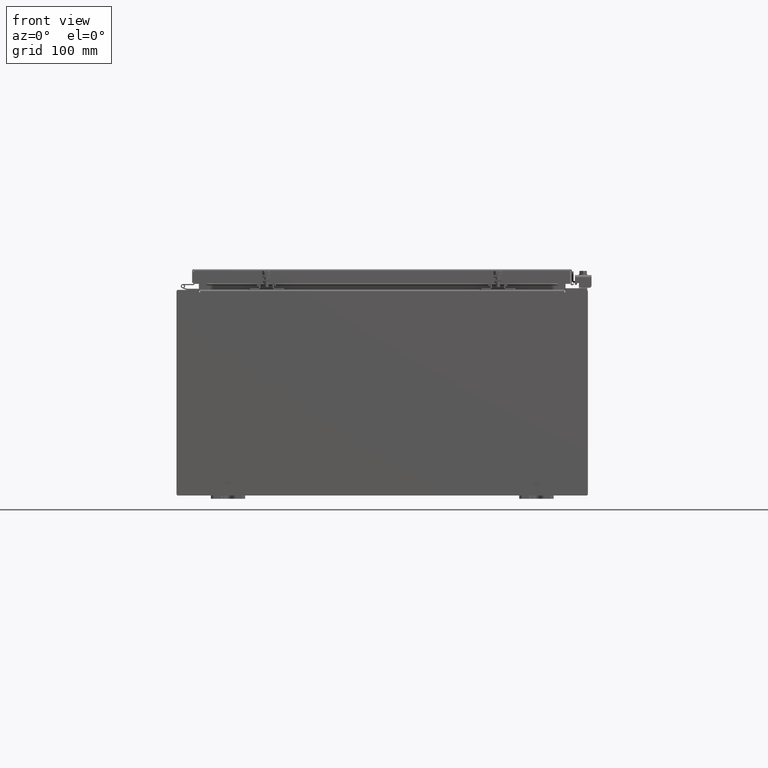
[diagram: clean part render]
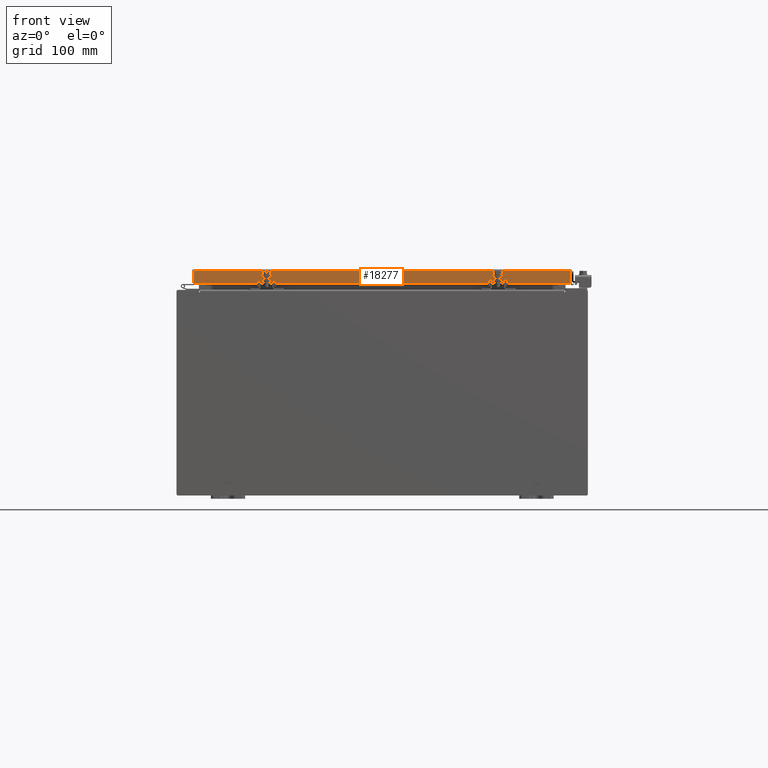
[diagram: same view with one face highlighted and labeled with its STEP entity id]
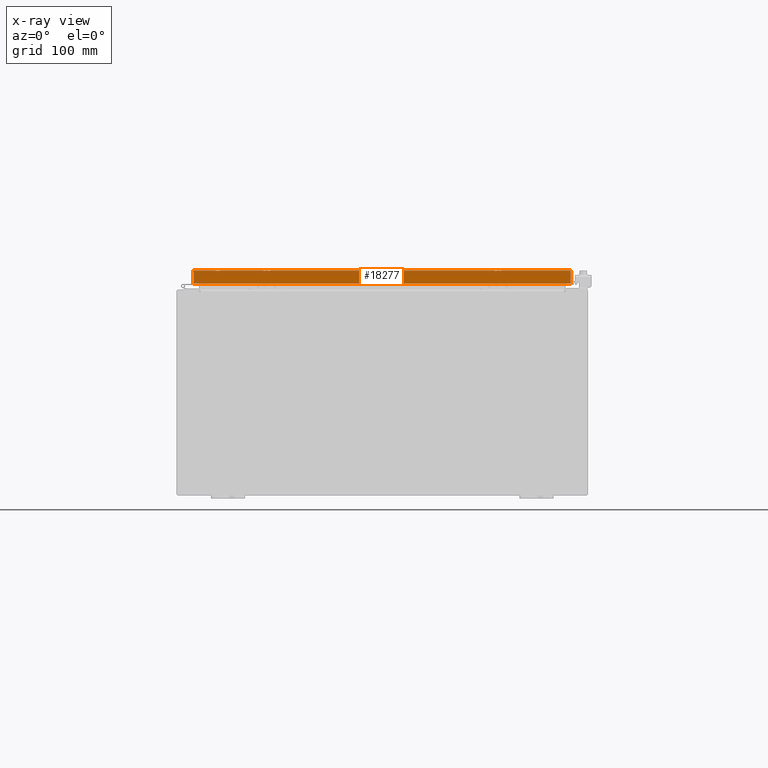
[diagram: x-ray of the same camera — body ghosted, the highlighted face saturated]
A machine part, front view. The second image highlights one B-rep face of the part: STEP entity #18277.
The next image is the same camera in x-ray: the body ghosted, the highlighted face saturated — about 0% of this face is hidden behind the body in this view.
In plain terms, the highlighted planar face has unit normal (0, 1, -0).
Its self-contained STEP definition (entity closure, byte-faithful):
#659 = LINE ( 'NONE', #26872, #32585 ) ;
#745 = VERTEX_POINT ( 'NONE', #12238 ) ;
#974 = VERTEX_POINT ( 'NONE', #33088 ) ;
#3391 = PLANE ( 'NONE',  #11721 ) ;
#4183 = VERTEX_POINT ( 'NONE', #17949 ) ;
#6563 = EDGE_LOOP ( 'NONE', ( #34346, #36633, #17030, #18699, #20842, #30029 ) ) ;
#8807 = VECTOR ( 'NONE', #12055, 39.37007874015748100 ) ;
#9214 = LINE ( 'NONE', #29676, #8807 ) ;
#10098 = LINE ( 'NONE', #26348, #22086 ) ;
#11344 = CARTESIAN_POINT ( 'NONE',  ( 11.07799999999999900, -14.09400000000000300, -0.8499999999999996400 ) ) ;
#11363 = LINE ( 'NONE', #35288, #35900 ) ;
#11721 = AXIS2_PLACEMENT_3D ( 'NONE', #16765, #37909, #37880 ) ;
#12055 = DIRECTION ( 'NONE',  ( 0.0000000000000000000, -2.818880942772360100E-015, -1.000000000000000000 ) ) ;
#12238 = CARTESIAN_POINT ( 'NONE',  ( -10.23915786437626700, -14.09399999999999900, -0.8500000000000012000 ) ) ;
#12294 = CARTESIAN_POINT ( 'NONE',  ( 10.98915786437626900, -14.09400000000000300, -0.8499999999999996400 ) ) ;
#13210 = DIRECTION ( 'NONE',  ( 1.000000000000000000, -9.864047639155999200E-017, -9.196021172131615100E-046 ) ) ;
#14146 = EDGE_CURVE ( 'NONE', #14876, #974, #9214, .T. ) ;
#14876 = VERTEX_POINT ( 'NONE', #21192 ) ;
#16765 = CARTESIAN_POINT ( 'NONE',  ( -1.390238874262646300E-015, -14.09399999999999900, 3.999012166344521600E-014 ) ) ;
#17030 = ORIENTED_EDGE ( 'NONE', *, *, #27751, .F. ) ;
#17278 = EDGE_CURVE ( 'NONE', #17833, #34608, #37690, .T. ) ;
#17833 = VERTEX_POINT ( 'NONE', #12294 ) ;
#17949 = CARTESIAN_POINT ( 'NONE',  ( 10.98915786437624400, -14.09400000000000100, -0.08770000000000224800 ) ) ;
#18146 = EDGE_CURVE ( 'NONE', #14876, #4183, #27127, .T. ) ;
#18277 = ADVANCED_FACE ( 'NONE', ( #37081 ), #3391, .F. ) ;
#18699 = ORIENTED_EDGE ( 'NONE', *, *, #36517, .F. ) ;
#20842 = ORIENTED_EDGE ( 'NONE', *, *, #17278, .F. ) ;
#21127 = DIRECTION ( 'NONE',  ( -1.000000000000000000, 0.0000000000000000000, 0.0000000000000000000 ) ) ;
#21192 = CARTESIAN_POINT ( 'NONE',  ( -10.98915786437626700, -14.09399999999999900, -0.08770000000000224800 ) ) ;
#22086 = VECTOR ( 'NONE', #29508, 39.37007874015748100 ) ;
#22145 = CARTESIAN_POINT ( 'NONE',  ( 11.07799999999999900, -14.09400000000000100, -0.08770000000000224800 ) ) ;
#23581 = DIRECTION ( 'NONE',  ( -1.000000000000000000, 9.864047639156033700E-017, 1.233005954894504400E-016 ) ) ;
#26348 = CARTESIAN_POINT ( 'NONE',  ( 11.07799999999999900, -14.09400000000000300, -0.8499999999999996400 ) ) ;
#26872 = CARTESIAN_POINT ( 'NONE',  ( 10.23915786437626700, -14.09399999999999900, -0.8500000000000012000 ) ) ;
#27013 = VECTOR ( 'NONE', #13210, 39.37007874015748100 ) ;
#27127 = LINE ( 'NONE', #22145, #27013 ) ;
#27751 = EDGE_CURVE ( 'NONE', #745, #974, #10098, .T. ) ;
#29508 = DIRECTION ( 'NONE',  ( -1.000000000000000000, 9.864047639156033700E-017, 1.233005954894504400E-016 ) ) ;
#29676 = CARTESIAN_POINT ( 'NONE',  ( -10.98915786437626900, -14.09399999999999900, 3.999012166344521600E-014 ) ) ;
#30029 = ORIENTED_EDGE ( 'NONE', *, *, #31847, .F. ) ;
#31612 = CARTESIAN_POINT ( 'NONE',  ( 10.23915786437626700, -14.09399999999999900, -0.8500000000000012000 ) ) ;
#31847 = EDGE_CURVE ( 'NONE', #4183, #17833, #11363, .T. ) ;
#32585 = VECTOR ( 'NONE', #21127, 39.37007874015748100 ) ;
#33088 = CARTESIAN_POINT ( 'NONE',  ( -10.98915786437626700, -14.09400000000000100, -0.8499999999999969800 ) ) ;
#34346 = ORIENTED_EDGE ( 'NONE', *, *, #18146, .F. ) ;
#34608 = VERTEX_POINT ( 'NONE', #31612 ) ;
#35191 = DIRECTION ( 'NONE',  ( 0.0000000000000000000, -2.818880942772360100E-015, -1.000000000000000000 ) ) ;
#35288 = CARTESIAN_POINT ( 'NONE',  ( 10.98915786437626900, -14.09400000000000100, -0.07469999999999978000 ) ) ;
#35900 = VECTOR ( 'NONE', #35191, 39.37007874015748100 ) ;
#36517 = EDGE_CURVE ( 'NONE', #34608, #745, #659, .T. ) ;
#36633 = ORIENTED_EDGE ( 'NONE', *, *, #14146, .T. ) ;
#37081 = FACE_OUTER_BOUND ( 'NONE', #6563, .T. ) ;
#37322 = VECTOR ( 'NONE', #23581, 39.37007874015748100 ) ;
#37690 = LINE ( 'NONE', #11344, #37322 ) ;
#37880 = DIRECTION ( 'NONE',  ( 0.0000000000000000000, 2.818880942772360100E-015, 1.000000000000000000 ) ) ;
#37909 = DIRECTION ( 'NONE',  ( 9.864047639155998000E-017, 1.000000000000000000, -2.818880942772360100E-015 ) ) ;